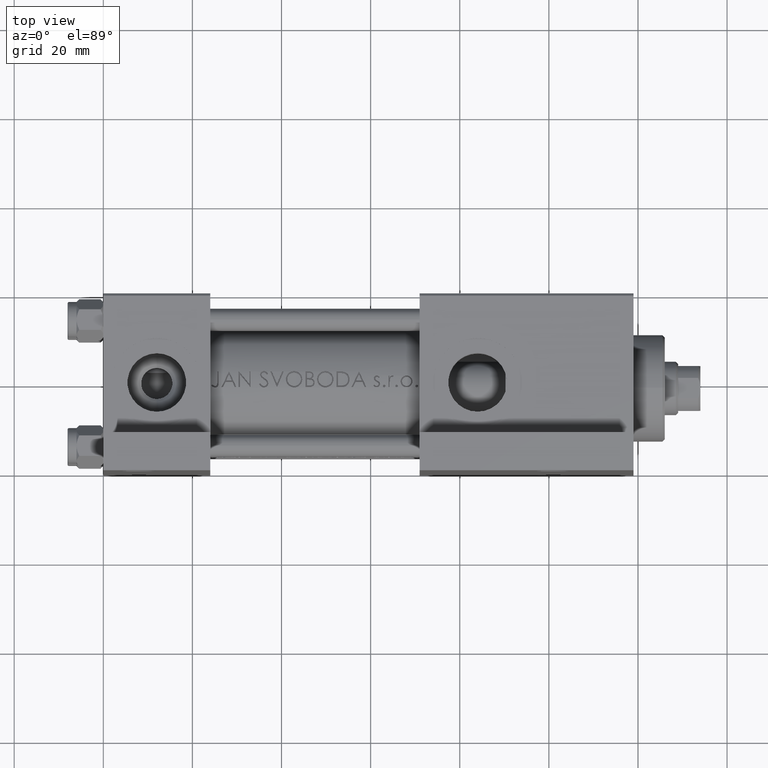
[diagram: clean part render]
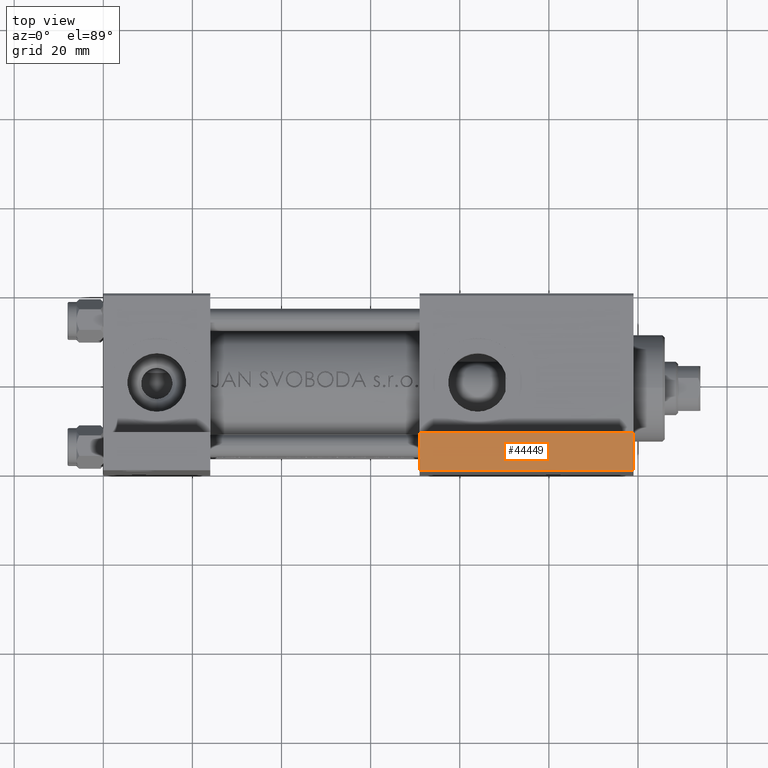
[diagram: same view with one face highlighted and labeled with its STEP entity id]
A machine part, top view. The second image highlights one B-rep face of the part: STEP entity #44449.
In plain terms, the highlighted planar face has unit normal (-0, 0, 1).
Its self-contained STEP definition (entity closure, byte-faithful):
#2146 = CARTESIAN_POINT ( 'NONE',  ( 71.00000000000001421, -36.00000000000000711, -11.50000000000000000 ) ) ;
#2265 = VECTOR ( 'NONE', #23952, 1000.000000000000000 ) ;
#2723 = CARTESIAN_POINT ( 'NONE',  ( 119.0000000000000000, -36.00000000000001421, -20.00000000000000000 ) ) ;
#3142 = CARTESIAN_POINT ( 'NONE',  ( 119.0000000000000000, -36.00000000000001421, -11.50000000000000000 ) ) ;
#7203 = EDGE_CURVE ( 'NONE', #27030, #47384, #8576, .T. ) ;
#8576 = LINE ( 'NONE', #45309, #2265 ) ;
#9115 = VECTOR ( 'NONE', #46458, 1000.000000000000000 ) ;
#9502 = LINE ( 'NONE', #17187, #9115 ) ;
#9608 = DIRECTION ( 'NONE',  ( -1.445602896647339656E-16, -1.000000000000000000, 0.000000000000000000 ) ) ;
#12627 = DIRECTION ( 'NONE',  ( 0.000000000000000000, 0.000000000000000000, -1.000000000000000000 ) ) ;
#13743 = CARTESIAN_POINT ( 'NONE',  ( 71.00000000000001421, -36.00000000000000711, -11.50000000000000000 ) ) ;
#13822 = VERTEX_POINT ( 'NONE', #13743 ) ;
#13924 = FACE_OUTER_BOUND ( 'NONE', #32447, .T. ) ;
#14841 = ORIENTED_EDGE ( 'NONE', *, *, #31889, .T. ) ;
#16816 = PLANE ( 'NONE',  #29458 ) ;
#16833 = DIRECTION ( 'NONE',  ( 0.000000000000000000, 0.000000000000000000, -1.000000000000000000 ) ) ;
#17187 = CARTESIAN_POINT ( 'NONE',  ( 71.00000000000001421, -36.00000000000000711, -11.50000000000000000 ) ) ;
#19612 = CARTESIAN_POINT ( 'NONE',  ( 119.0000000000000000, -36.00000000000001421, -11.50000000000000000 ) ) ;
#23952 = DIRECTION ( 'NONE',  ( -1.000000000000000000, 1.445602896647339656E-16, -0.000000000000000000 ) ) ;
#24059 = ORIENTED_EDGE ( 'NONE', *, *, #7203, .F. ) ;
#24258 = DIRECTION ( 'NONE',  ( 1.000000000000000000, -1.445602896647339656E-16, 0.000000000000000000 ) ) ;
#27030 = VERTEX_POINT ( 'NONE', #2723 ) ;
#28070 = EDGE_CURVE ( 'NONE', #44950, #27030, #41444, .T. ) ;
#28119 = EDGE_CURVE ( 'NONE', #44950, #13822, #9502, .T. ) ;
#29458 = AXIS2_PLACEMENT_3D ( 'NONE', #31452, #9608, #24258 ) ;
#31009 = LINE ( 'NONE', #2146, #42230 ) ;
#31452 = CARTESIAN_POINT ( 'NONE',  ( 71.00000000000001421, -36.00000000000000711, -11.50000000000000000 ) ) ;
#31889 = EDGE_CURVE ( 'NONE', #13822, #47384, #31009, .T. ) ;
#32447 = EDGE_LOOP ( 'NONE', ( #24059, #32989, #35681, #14841 ) ) ;
#32989 = ORIENTED_EDGE ( 'NONE', *, *, #28070, .F. ) ;
#35681 = ORIENTED_EDGE ( 'NONE', *, *, #28119, .T. ) ;
#41444 = LINE ( 'NONE', #19612, #44388 ) ;
#42230 = VECTOR ( 'NONE', #16833, 1000.000000000000000 ) ;
#44388 = VECTOR ( 'NONE', #12627, 1000.000000000000000 ) ;
#44411 = CARTESIAN_POINT ( 'NONE',  ( 71.00000000000001421, -36.00000000000000711, -20.00000000000000000 ) ) ;
#44449 = ADVANCED_FACE ( 'NONE', ( #13924 ), #16816, .T. ) ;
#44950 = VERTEX_POINT ( 'NONE', #3142 ) ;
#45309 = CARTESIAN_POINT ( 'NONE',  ( 71.00000000000001421, -36.00000000000000711, -20.00000000000000000 ) ) ;
#46458 = DIRECTION ( 'NONE',  ( -1.000000000000000000, 1.445602896647339656E-16, -0.000000000000000000 ) ) ;
#47384 = VERTEX_POINT ( 'NONE', #44411 ) ;